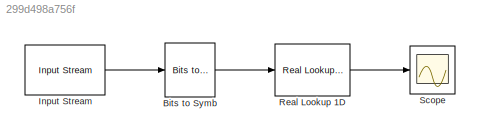
MODEL slx_299d498a756f
KIND model
CONFIG AbsTol = auto
CONFIG EnableMultiTasking = off
CONFIG FixedStep = auto
CONFIG MaxStep = auto
CONFIG MinStep = auto
CONFIG RelTol = 1e-3
CONFIG SampleTimeConstraint = Unconstrained
CONFIG SolverName = VariableStepAuto
CONFIG StartTime = 0.0
CONFIG StopTime = 100
BLOCK [Reference] Bits to Symb  REF=dsp_blocks/Conversions/Bits to Symb
  Ports = [1, 1]
  SourceBlock = dsp_blocks/Conversions/Bits to Symb
BLOCK [Reference] Input Stream  REF=dsp_blocks/Sources//Sinks/Input Stream
  Ports = [0, 1]
  SourceBlock = dsp_blocks/Sources//Sinks/Input Stream
BLOCK [Reference] Real Lookup 1D  REF=dsp_blocks/Conversions/Real Lookup 1D
  Ports = [1, 1]
  SourceBlock = dsp_blocks/Conversions/Real Lookup 1D
BLOCK [Scope] Scope
  Floating = off
  NumInputPorts = 1
  Ports = [1]
  ScopeSpecificationString = Simulink.scopes.TimeScopeBlockCfg('CurrentConfiguration', extmgr.ConfigurationSet(extmgr.Configuration('Core','General UI',true),extmgr.Configuration('Core','Source UI',true),extmgr.Configuration('Sources','WiredSimulink',true),extmgr.Configuration('Visuals','Time Domain',true,'SerializedDisplays',{struct('MinYLimReal','-1.25','MaxYLimReal','1.25','YLabelReal','','MinYLimMag','0.00000','MaxYLimMag...<+1316ch>
LINE Bits to Symb:1 -> Real Lookup 1D:1
LINE Input Stream:1 -> Bits to Symb:1
LINE Real Lookup 1D:1 -> Scope:1
